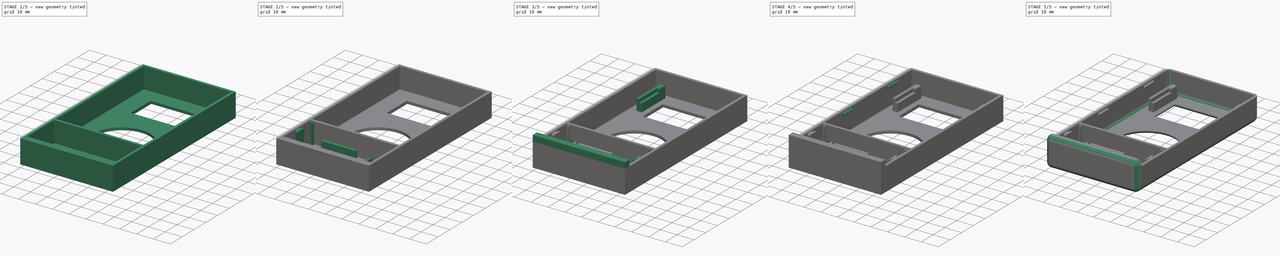
[diagram: build sequence overview — one tinted view per stage of 5, left to right]
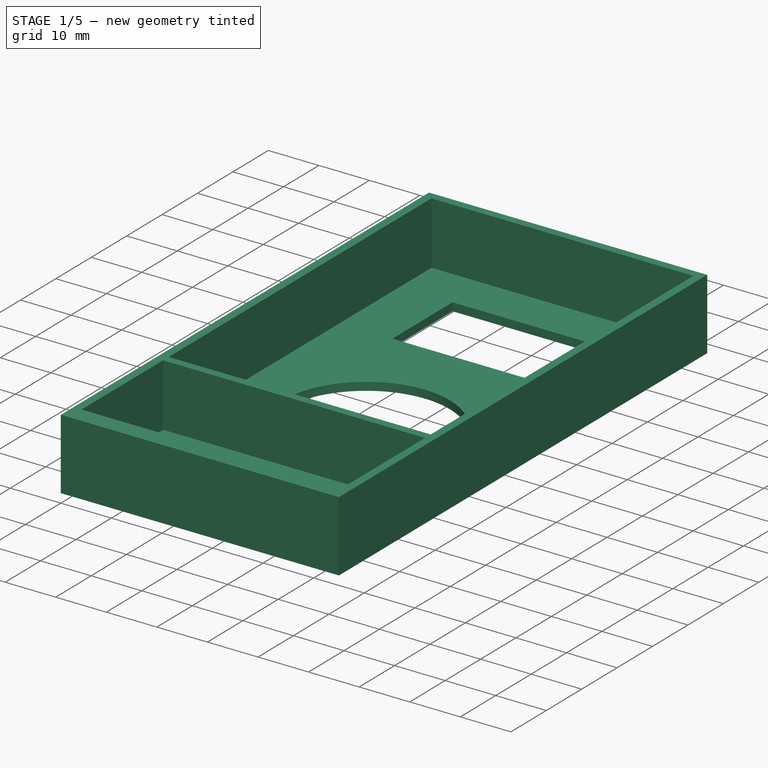
[diagram: stage 1 of 5 — iso view after this stage's code; geometry added in this stage tinted green]
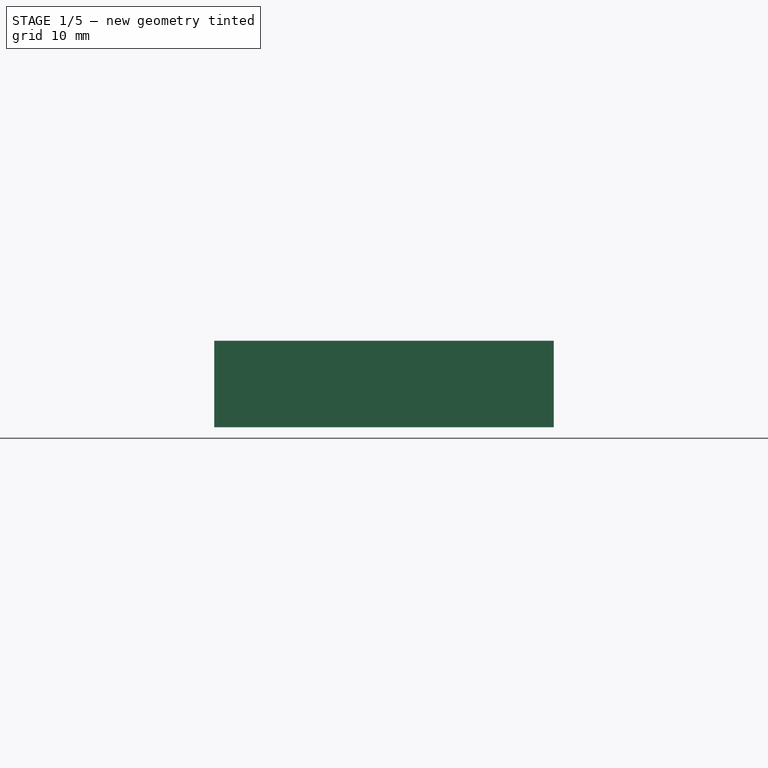
[diagram: stage 1 of 5 — front view after this stage's code; geometry added in this stage tinted green]
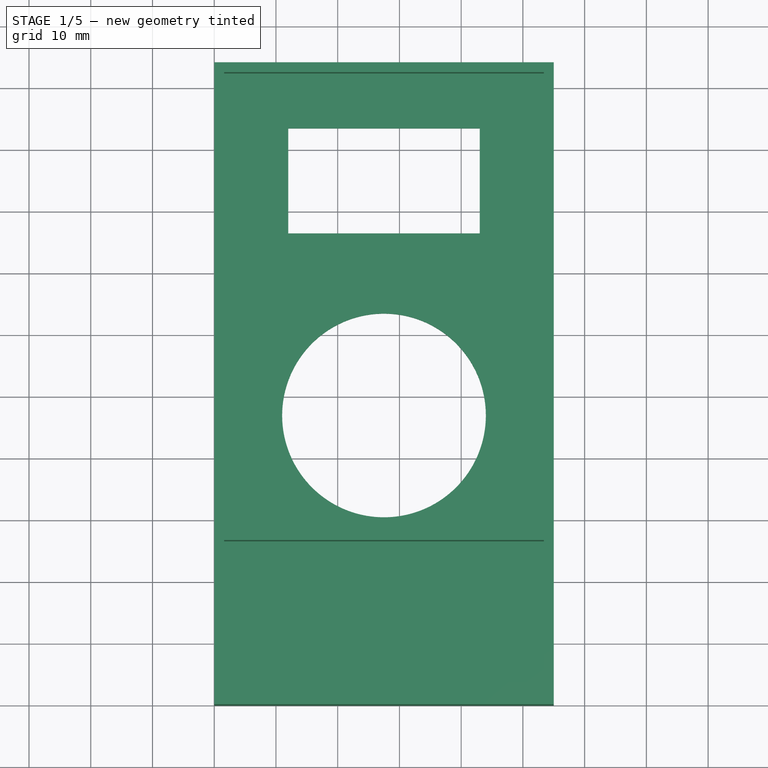
[diagram: stage 1 of 5 — top view after this stage's code; geometry added in this stage tinted green]
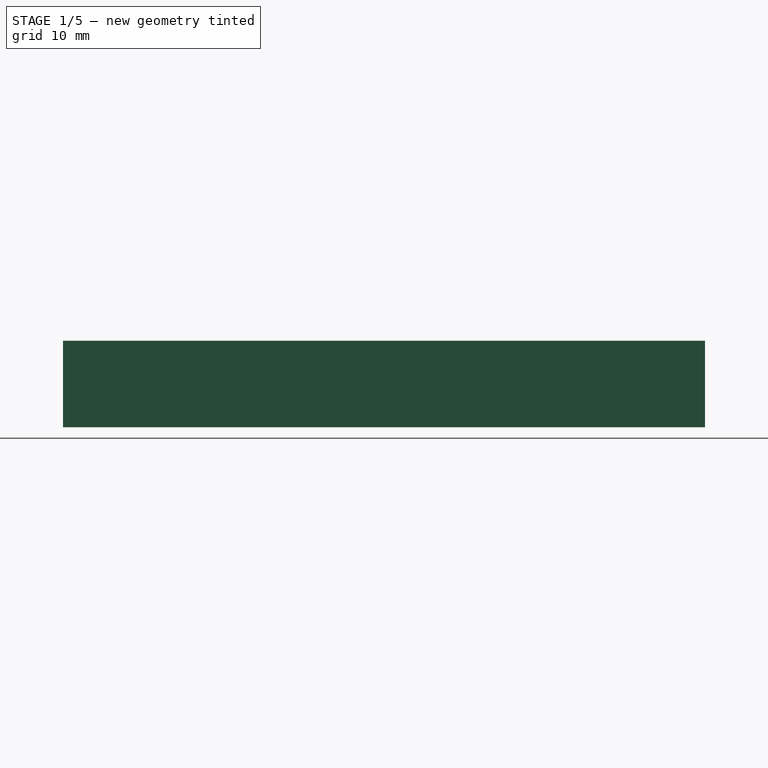
[diagram: stage 1 of 5 — right view after this stage's code; geometry added in this stage tinted green]
FCSTD DOCUMENT  (FreeCAD 0.16R)
Label: enclosure_front_fillets
License: All rights reserved
LicenseURL: http://en.wikipedia.org/wiki/All_rights_reserved
objects: Sketcher::SketchObject×16, PartDesign::Pad×11, PartDesign::Pocket×5, PartDesign::Chamfer×3, PartDesign::Fillet×2, App::DocumentObjectGroup×1
note: 53 computed .brp shape members not serialized (recipe doc carries the construction recipe); baked Part::Feature solids carry a one-line shape summary decoded from their .brp

FEATURE [Sketcher::SketchObject] Sketch
  sketch-geometry (9):
    g0: LineSegment StartX=0 StartY=0 StartZ=0 EndX=55 EndY=0 EndZ=0
    g1: LineSegment StartX=55 StartY=0 StartZ=0 EndX=55 EndY=104 EndZ=0
    g2: LineSegment StartX=55 StartY=104 StartZ=0 EndX=0 EndY=104 EndZ=0
    g3: LineSegment StartX=0 StartY=104 StartZ=0 EndX=0 EndY=0 EndZ=0
    g4: Circle CenterX=27.5 CenterY=47 CenterZ=0 NormalX=0 NormalY=0 NormalZ=1 Radius=16.5
    g5: LineSegment StartX=12 StartY=93.5 StartZ=0 EndX=43 EndY=93.5 EndZ=0
    g6: LineSegment StartX=43 StartY=93.5 StartZ=0 EndX=43 EndY=76.5 EndZ=0
    g7: LineSegment StartX=43 StartY=76.5 StartZ=0 EndX=12 EndY=76.5 EndZ=0
    g8: LineSegment StartX=12 StartY=76.5 StartZ=0 EndX=12 EndY=93.5 EndZ=0
  constraints (26):
    c: Coincident(g0,g1)
    c: Coincident(g1,g2)
    c: Coincident(g2,g3)
    c: Coincident(g3,g0)
    c: Horizontal(g0)
    c: Horizontal(g2)
    c: Vertical(g1)
    c: Vertical(g3)
    c: Coincident(g0,g-1)
    c: Distance(g3) = 104
    c: Distance(g0) = 55
    c: Coincident(g5,g6)
    c: Coincident(g6,g7)
    c: Coincident(g7,g8)
    c: Coincident(g8,g5)
    c: Horizontal(g5)
    c: Horizontal(g7)
    c: Vertical(g6)
    c: Vertical(g8)
    c: Radius(g4) = 16.5
    c: DistanceX(g4) = 27.5
    c: DistanceY(g4) = 47
    c: DistanceX(g5,g5) = 31
    c: DistanceY(g8,g8) = 17
    c: DistanceX(g5) = 12
    c: DistanceY(g4,g7) = 29.5
FEATURE [PartDesign::Pad] Pad
  Length = 14
  Length2 = 100
  Sketch = -> Sketch
  Type = 0
FEATURE [Sketcher::SketchObject] Sketch001
  ExternalGeometry = -> [Pad]
  Placement = pos=(0,0,14) rot=(0,0,1;0rad)
  Support = -> Pad [Face11]
  sketch-geometry (8):
    g0: LineSegment StartX=1.6 StartY=102.4 StartZ=0 EndX=53.4 EndY=102.4 EndZ=0
    g1: LineSegment StartX=53.4 StartY=28.2 StartZ=0 EndX=1.6 EndY=28.2 EndZ=0
    g2: LineSegment StartX=1.6 StartY=28.2 StartZ=0 EndX=1.6 EndY=102.4 EndZ=0
    g3: LineSegment StartX=1.6 StartY=26.6 StartZ=0 EndX=53.4 EndY=26.6 EndZ=0
    g4: LineSegment StartX=53.4 StartY=3.6 StartZ=0 EndX=1.6 EndY=3.6 EndZ=0
    g5: LineSegment StartX=1.6 StartY=3.6 StartZ=0 EndX=1.6 EndY=26.6 EndZ=0
    g6: LineSegment StartX=53.4 StartY=102.4 StartZ=0 EndX=53.4 EndY=28.2 EndZ=0
    g7: LineSegment StartX=53.4 StartY=26.6 StartZ=0 EndX=53.4 EndY=3.6 EndZ=0
  constraints (24):
    c: Coincident(g1,g2)
    c: Coincident(g2,g0)
    c: Horizontal(g0)
    c: Horizontal(g1)
    c: Vertical(g2)
    c: Coincident(g4,g5)
    c: Coincident(g5,g3)
    c: Horizontal(g3)
    c: Horizontal(g4)
    c: Vertical(g5)
    c: DistanceX(g4) = 1.6
    c: DistanceY(g4) = 3.6
    c: DistanceX(g4,g-5) = 1.6
    c: DistanceY(g3,g1) = 1.6
    c: DistanceX(g0) = 1.6
    c: DistanceY(g0,g-6) = 1.6
    c: DistanceX(g0,g-6) = 1.6
    c: DistanceY(g5,g5) = 23
    c: Coincident(g6,g0)
    c: Coincident(g6,g1)
    c: Vertical(g6)
    c: Coincident(g7,g3)
    c: Coincident(g7,g4)
    c: Vertical(g7)
FEATURE [PartDesign::Pocket] Pocket
  Length = 12.4
  Sketch = -> Sketch001
  Type = 0
FEATURE [Sketcher::SketchObject] Sketch003
  Placement = pos=(0,0,1.6) rot=(0,0,1;0rad)
  Support = -> Pocket [Face20]
  sketch-geometry (4):
    g0: LineSegment StartX=9 StartY=66 StartZ=0 EndX=46 EndY=66 EndZ=0
    g1: LineSegment StartX=46 StartY=66 StartZ=0 EndX=46 EndY=100 EndZ=0
    g2: LineSegment StartX=46 StartY=100 StartZ=0 EndX=9 EndY=100 EndZ=0
    g3: LineSegment StartX=9 StartY=100 StartZ=0 EndX=9 EndY=66 EndZ=0
  constraints (12):
    c: Coincident(g0,g1)
    c: Coincident(g1,g2)
    c: Coincident(g2,g3)
    c: Coincident(g3,g0)
    c: Horizontal(g0)
    c: Horizontal(g2)
    c: Vertical(g1)
    c: Vertical(g3)
    c: DistanceX(g0,g0) = 37
    c: DistanceY(g1,g1) = 34
    c: DistanceX(g0) = 9
    c: DistanceY(g0) = 66
FEATURE [PartDesign::Pocket] Pocket001
  Length = 0.0001
  Sketch = -> Sketch003
  Type = 0
FEATURE [Sketcher::SketchObject] Sketch004
  ExternalGeometry = -> [Pocket001]
  Placement = pos=(1.6,0,0) rot=(0.57735,0.57735,0.57735;2.0944rad)
  Support = -> Pocket001 [Face19]
  sketch-geometry (10):
    g0: Circle CenterX=10.5 CenterY=31.65 CenterZ=0 NormalX=0 NormalY=0 NormalZ=1 Radius=2
    g1: Circle CenterX=45 CenterY=31.65 CenterZ=0 NormalX=0 NormalY=0 NormalZ=1 Radius=2
    g2: LineSegment StartX=9 StartY=80 StartZ=0 EndX=5 EndY=80 EndZ=0
    g3: LineSegment StartX=5 StartY=80 StartZ=0 EndX=5 EndY=90 EndZ=0
    g4: LineSegment StartX=5 StartY=90 StartZ=0 EndX=9 EndY=90 EndZ=0
    g5: LineSegment StartX=9 StartY=90 StartZ=0 EndX=9 EndY=80 EndZ=0
    g6: LineSegment StartX=46 StartY=90 StartZ=0 EndX=50 EndY=90 EndZ=0
    g7: LineSegment StartX=50 StartY=90 StartZ=0 EndX=50 EndY=80 EndZ=0
    g8: LineSegment StartX=50 StartY=80 StartZ=0 EndX=46 EndY=80 EndZ=0
    g9: LineSegment StartX=46 StartY=80 StartZ=0 EndX=46 EndY=90 EndZ=0
  constraints (22):
    c: Coincident(g2,g3)
    c: Coincident(g3,g4)
    c: Coincident(g4,g5)
    c: Coincident(g5,g2)
    c: Horizontal(g2)
    c: Horizontal(g4)
    c: Vertical(g3)
    c: Vertical(g5)
    c: Coincident(g6,g7)
    c: Coincident(g7,g8)
    c: Coincident(g8,g9)
    c: Coincident(g9,g6)
    c: Horizontal(g6)
    c: Horizontal(g8)
    c: Vertical(g7)
    c: Vertical(g9)
    c: Radius(g0) = 2
    c: Equal(g0,g1)
    c: Distance(g2) = 4
    c: Distance(g8) = 4
    c: Distance(g3) = 10
    c: Distance(g7) = 10
FEATURE [PartDesign::Pad] Pad001
  Length = 4
  Length2 = 100
  Sketch = -> Sketch004
  Type = 0
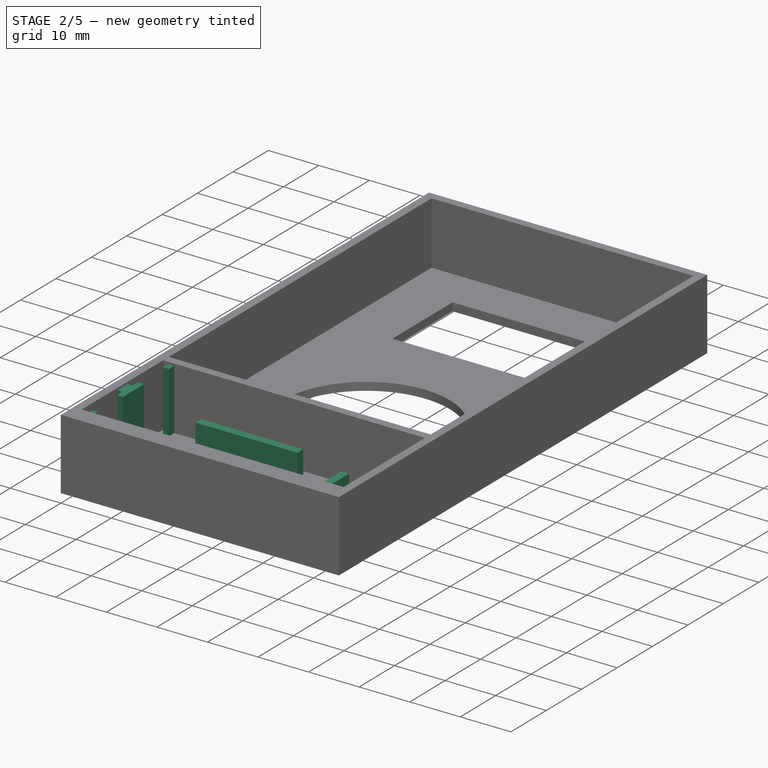
[diagram: stage 2 of 5 — iso view after this stage's code; geometry added in this stage tinted green]
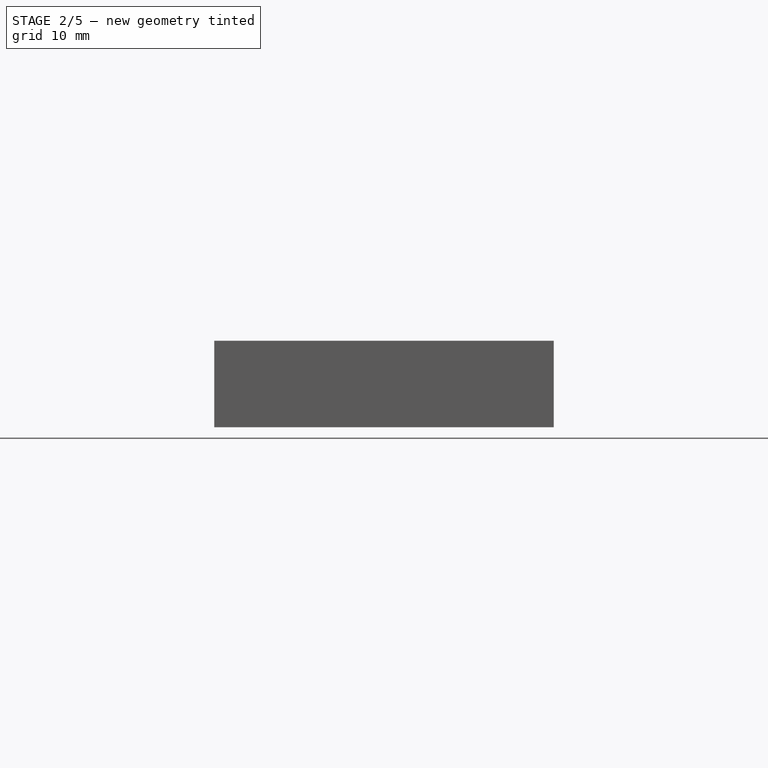
[diagram: stage 2 of 5 — front view after this stage's code; geometry added in this stage tinted green]
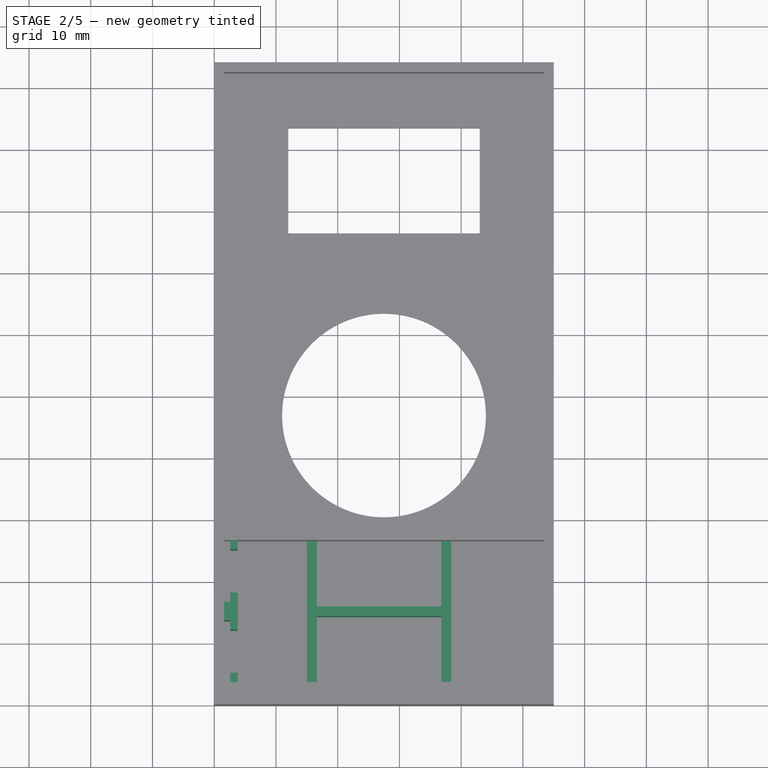
[diagram: stage 2 of 5 — top view after this stage's code; geometry added in this stage tinted green]
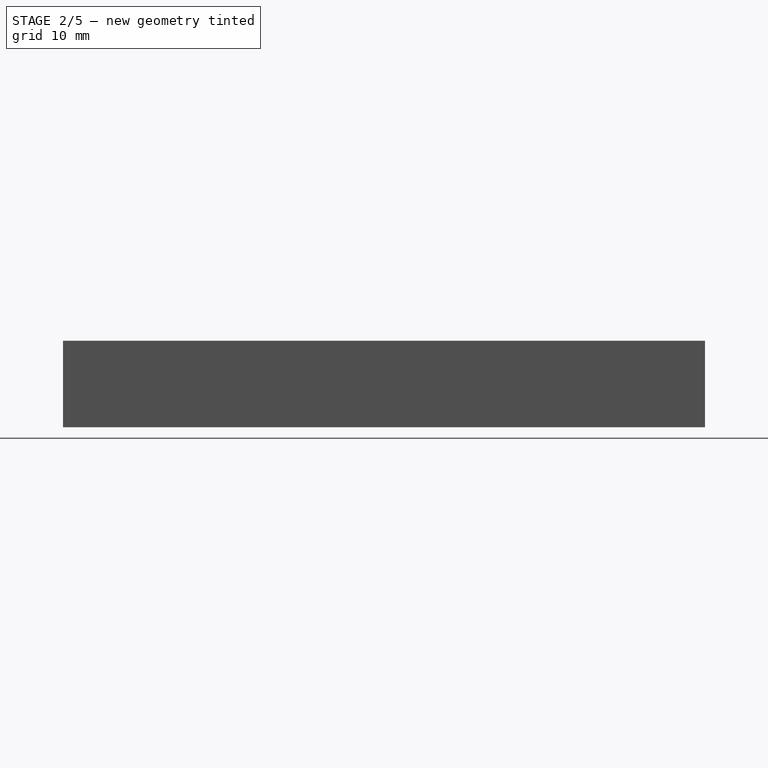
[diagram: stage 2 of 5 — right view after this stage's code; geometry added in this stage tinted green]
FEATURE [Sketcher::SketchObject] Sketch005
  Placement = pos=(0,0,5.6) rot=(0,0,1;0rad)
  Support = -> Pad001 [Face35]
  sketch-geometry (10):
    g0: LineSegment StartX=5 StartY=90 StartZ=0 EndX=7.45 EndY=90 EndZ=0
    g1: LineSegment StartX=7.45 StartY=90 StartZ=0 EndX=7.45 EndY=80 EndZ=0
    g2: LineSegment StartX=7.45 StartY=80 StartZ=0 EndX=5 EndY=80 EndZ=0
    g3: LineSegment StartX=5 StartY=80 StartZ=0 EndX=5 EndY=90 EndZ=0
    g4: LineSegment StartX=50 StartY=90 StartZ=0 EndX=47.85 EndY=90 EndZ=0
    g5: LineSegment StartX=47.85 StartY=90 StartZ=0 EndX=47.85 EndY=80 EndZ=0
    g6: LineSegment StartX=47.85 StartY=80 StartZ=0 EndX=50 EndY=80 EndZ=0
    g7: LineSegment StartX=50 StartY=80 StartZ=0 EndX=50 EndY=90 EndZ=0
    g8: Circle CenterX=10.5 CenterY=31.65 CenterZ=0 NormalX=0 NormalY=0 NormalZ=1 Radius=0.8
    g9: Circle CenterX=45 CenterY=31.65 CenterZ=0 NormalX=0 NormalY=0 NormalZ=1 Radius=0.8
FEATURE [PartDesign::Pad] Pad002
  Length = 2
  Length2 = 100
  Sketch = -> Sketch005
  Type = 0
FEATURE [Sketcher::SketchObject] Sketch006
  ExternalGeometry = -> [Pad002]
  Placement = pos=(0,0,1.6) rot=(0,0,1;0rad)
  Support = -> Pad002 [Face22]
  sketch-geometry (8):
    g0: LineSegment StartX=16.6 StartY=26.6 StartZ=0 EndX=15 EndY=26.6 EndZ=0
    g1: LineSegment StartX=15 StartY=26.6 StartZ=0 EndX=15 EndY=3.6 EndZ=0
    g2: LineSegment StartX=15 StartY=3.6 StartZ=0 EndX=16.6 EndY=3.6 EndZ=0
    g3: LineSegment StartX=16.6 StartY=3.6 StartZ=0 EndX=16.6 EndY=26.6 EndZ=0
    g4: LineSegment StartX=36.8 StartY=26.6 StartZ=0 EndX=38.4 EndY=26.6 EndZ=0
    g5: LineSegment StartX=38.4 StartY=26.6 StartZ=0 EndX=38.4 EndY=3.6 EndZ=0
    g6: LineSegment StartX=38.4 StartY=3.6 StartZ=0 EndX=36.8 EndY=3.6 EndZ=0
    g7: LineSegment StartX=36.8 StartY=3.6 StartZ=0 EndX=36.8 EndY=26.6 EndZ=0
  constraints (24):
    c: Coincident(g0,g1)
    c: Coincident(g1,g2)
    c: Coincident(g2,g3)
    c: Coincident(g3,g0)
    c: Horizontal(g0)
    c: Horizontal(g2)
    c: Vertical(g1)
    c: Vertical(g3)
    c: PointOnObject(g0,g-3)
    c: PointOnObject(g1,g-4)
    c: Coincident(g4,g5)
    c: Coincident(g5,g6)
    c: Coincident(g6,g7)
    c: Coincident(g7,g4)
    c: Horizontal(g4)
    c: Horizontal(g6)
    c: Vertical(g5)
    c: Vertical(g7)
    c: PointOnObject(g4,g-3)
    c: PointOnObject(g5,g-4)
    c: Distance(g2,g1) = 1.6
    c: Distance(g6,g5) = 1.6
    c: DistanceX(g-4,g2) = 15
    c: DistanceX(g5,g-4) = 15
FEATURE [PartDesign::Pad] Pad003
  Length = 2
  Length2 = 100
  Sketch = -> Sketch006
  Type = 0
FEATURE [Sketcher::SketchObject] Sketch007
  ExternalGeometry = -> [Pad003]
  Placement = pos=(0,0,1.6) rot=(0,0,1;0rad)
  Support = -> Pad003 [Face26]
  sketch-geometry (4):
    g0: LineSegment StartX=16.6 StartY=15.9 StartZ=0 EndX=36.8 EndY=15.9 EndZ=0
    g1: LineSegment StartX=36.8 StartY=15.9 StartZ=0 EndX=36.8 EndY=14.3 EndZ=0
    g2: LineSegment StartX=36.8 StartY=14.3 StartZ=0 EndX=16.6 EndY=14.3 EndZ=0
    g3: LineSegment StartX=16.6 StartY=14.3 StartZ=0 EndX=16.6 EndY=15.9 EndZ=0
  constraints (12):
    c: Coincident(g0,g1)
    c: Coincident(g1,g2)
    c: Coincident(g2,g3)
    c: Coincident(g3,g0)
    c: Horizontal(g0)
    c: Horizontal(g2)
    c: Vertical(g1)
    c: Vertical(g3)
    c: PointOnObject(g0,g-3)
    c: PointOnObject(g1,g-4)
    c: Distance(g0,g2) = 1.6
    c: DistanceY(g0,g-3) = 10.7
FEATURE [PartDesign::Pad] Pad004
  Length = 10
  Length2 = 100
  Sketch = -> Sketch007
  Type = 0
FEATURE [Sketcher::SketchObject] Sketch008
  ExternalGeometry = -> [Pad004]
  Placement = pos=(0,0,1.6) rot=(0,0,1;0rad)
  Support = -> Pad004 [Face30]
  sketch-geometry (16):
    g0: LineSegment StartX=2.6 StartY=26.6 StartZ=0 EndX=3.8 EndY=26.6 EndZ=0
    g1: LineSegment StartX=3.8 StartY=26.6 StartZ=0 EndX=3.8 EndY=25.1 EndZ=0
    g2: LineSegment StartX=3.8 StartY=25.1 StartZ=0 EndX=2.6 EndY=25.1 EndZ=0
    g3: LineSegment StartX=2.6 StartY=25.1 StartZ=0 EndX=2.6 EndY=26.6 EndZ=0
    g4: LineSegment StartX=2.6 StartY=3.6 StartZ=0 EndX=3.8 EndY=3.6 EndZ=0
    g5: LineSegment StartX=3.8 StartY=3.6 StartZ=0 EndX=3.8 EndY=5.1 EndZ=0
    g6: LineSegment StartX=3.8 StartY=5.1 StartZ=0 EndX=2.6 EndY=5.1 EndZ=0
    g7: LineSegment StartX=2.6 StartY=5.1 StartZ=0 EndX=2.6 EndY=3.6 EndZ=0
    g8: LineSegment StartX=1.6 StartY=16.6 StartZ=0 EndX=1.6 EndY=13.6 EndZ=0
    g9: LineSegment StartX=1.6 StartY=13.6 StartZ=0 EndX=2.6 EndY=13.6 EndZ=0
    g10: LineSegment StartX=2.6 StartY=13.6 StartZ=0 EndX=2.6 EndY=12.1 EndZ=0
    g11: LineSegment StartX=2.6 StartY=12.1 StartZ=0 EndX=3.8 EndY=12.1 EndZ=0
    g12: LineSegment StartX=3.8 StartY=12.1 StartZ=0 EndX=3.8 EndY=18.1 EndZ=0
    g13: LineSegment StartX=3.8 StartY=18.1 StartZ=0 EndX=2.6 EndY=18.1 EndZ=0
    g14: LineSegment StartX=2.6 StartY=18.1 StartZ=0 EndX=2.6 EndY=16.6 EndZ=0
    g15: LineSegment StartX=2.6 StartY=16.6 StartZ=0 EndX=1.6 EndY=16.6 EndZ=0
  constraints (48):
    c: Coincident(g0,g1)
    c: Coincident(g1,g2)
    c: Coincident(g2,g3)
    c: Coincident(g3,g0)
    c: Horizontal(g0)
    c: Horizontal(g2)
    c: Vertical(g1)
    c: Vertical(g3)
    c: PointOnObject(g0,g-3)
    c: Coincident(g4,g5)
    c: Coincident(g5,g6)
    c: Coincident(g6,g7)
    c: Coincident(g7,g4)
    c: Horizontal(g4)
    c: Horizontal(g6)
    c: Vertical(g5)
    c: Vertical(g7)
    c: PointOnObject(g4,g-5)
    c: Vertical(g8)
    c: Coincident(g8,g9)
    c: Horizontal(g9)
    c: Coincident(g9,g10)
    c: Vertical(g10)
    c: Coincident(g10,g11)
    c: Horizontal(g11)
    c: Coincident(g11,g12)
    c: Vertical(g12)
    c: Coincident(g12,g13)
    c: Horizontal(g13)
    c: Coincident(g13,g14)
    c: Vertical(g14)
    c: Coincident(g14,g15)
    c: Coincident(g15,g8)
    c: Parallel(g15,g9)
    c: Equal(g15,g9)
    c: Equal(g14,g10)
    c: Equal(g10,g7)
    c: Equal(g7,g3)
    c: Equal(g13,g2)
    c: Equal(g2,g6)
    c: PointOnObject(g8,g-4)
    c: Distance(g1) = 1.5
    c: Distance(g2) = 1.2
    c: Distance(g15) = 1
    c: DistanceX(g-4,g0) = 1
    c: DistanceX(g-5,g4) = 1
    c: DistanceY(g-5,g8) = 10
    c: DistanceY(g8,g-4) = 10
FEATURE [PartDesign::Pad] Pad005
  Length = 12
  Length2 = 100
  Sketch = -> Sketch008
  Type = 0
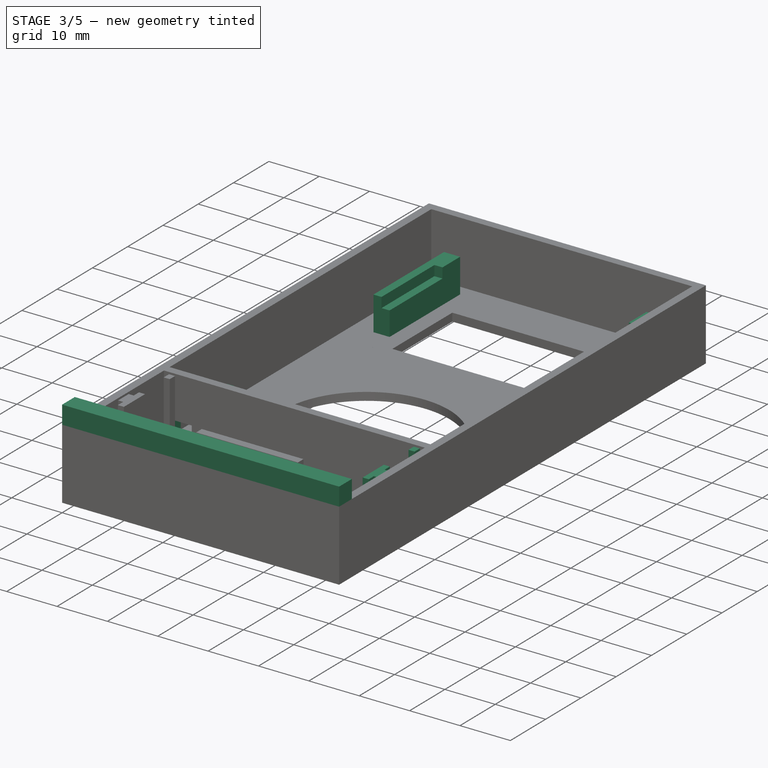
[diagram: stage 3 of 5 — iso view after this stage's code; geometry added in this stage tinted green]
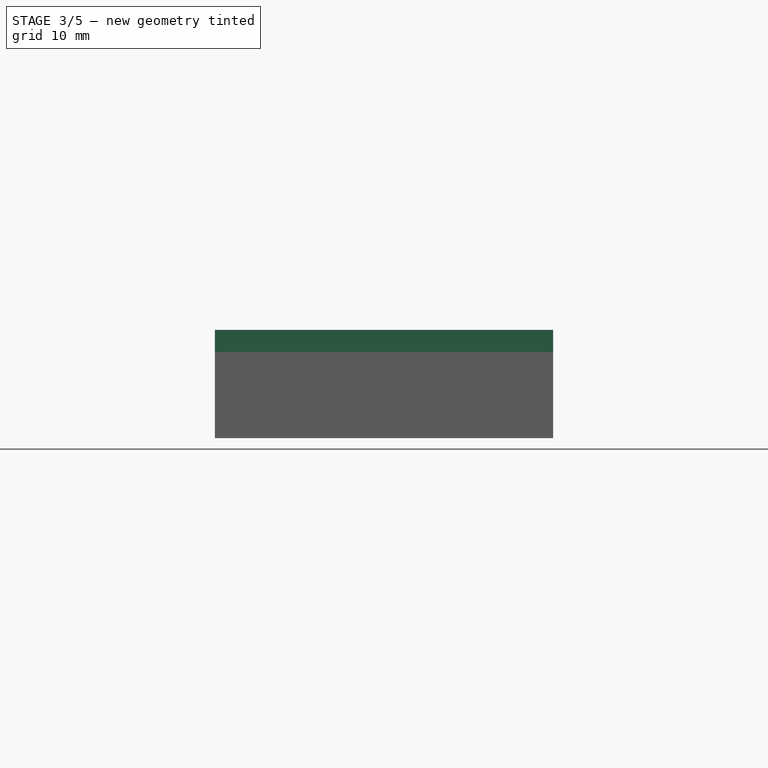
[diagram: stage 3 of 5 — front view after this stage's code; geometry added in this stage tinted green]
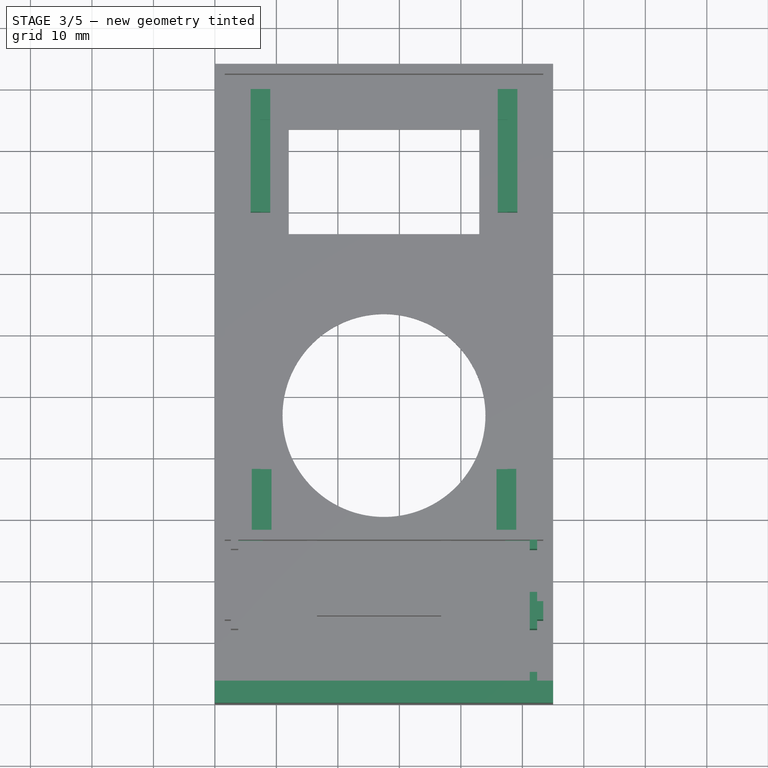
[diagram: stage 3 of 5 — top view after this stage's code; geometry added in this stage tinted green]
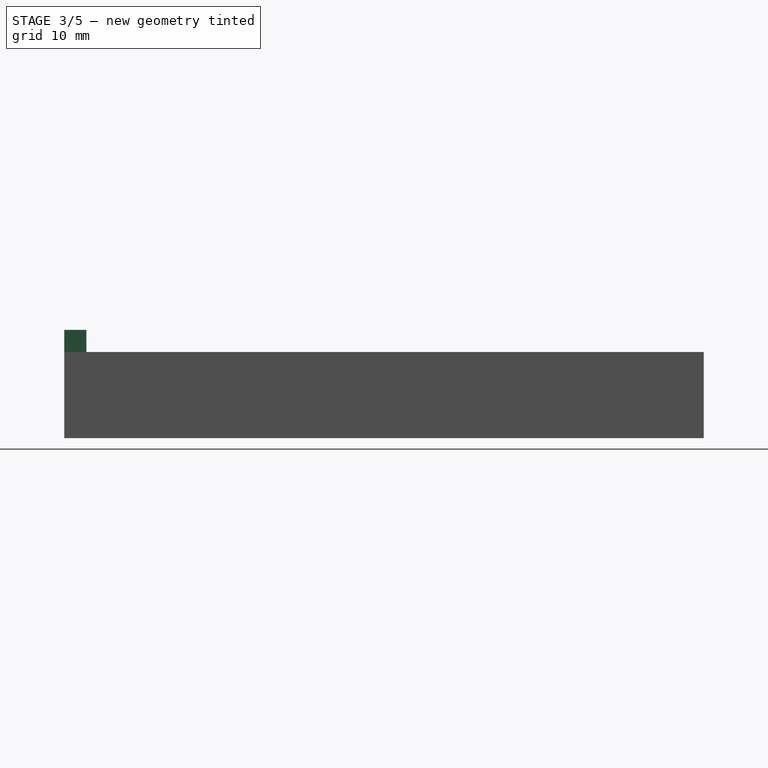
[diagram: stage 3 of 5 — right view after this stage's code; geometry added in this stage tinted green]
FEATURE [Sketcher::SketchObject] Sketch009
  ExternalGeometry = -> [Pad005]
  Placement = pos=(0,0,1.6) rot=(0,0,1;0rad)
  Support = -> Pad005 [Face22]
  sketch-geometry (16):
    g0: LineSegment StartX=51.2 StartY=26.6 StartZ=0 EndX=52.4 EndY=26.6 EndZ=0
    g1: LineSegment StartX=52.4 StartY=26.6 StartZ=0 EndX=52.4 EndY=25.1 EndZ=0
    g2: LineSegment StartX=52.4 StartY=25.1 StartZ=0 EndX=51.2 EndY=25.1 EndZ=0
    g3: LineSegment StartX=51.2 StartY=25.1 StartZ=0 EndX=51.2 EndY=26.6 EndZ=0
    g4: LineSegment StartX=51.2 StartY=3.6 StartZ=0 EndX=52.4 EndY=3.6 EndZ=0
    g5: LineSegment StartX=52.4 StartY=3.6 StartZ=0 EndX=52.4 EndY=5.1 EndZ=0
    g6: LineSegment StartX=52.4 StartY=5.1 StartZ=0 EndX=51.2 EndY=5.1 EndZ=0
    g7: LineSegment StartX=51.2 StartY=5.1 StartZ=0 EndX=51.2 EndY=3.6 EndZ=0
    g8: LineSegment StartX=53.4 StartY=16.6 StartZ=0 EndX=52.4 EndY=16.6 EndZ=0
    g9: LineSegment StartX=52.4 StartY=16.6 StartZ=0 EndX=52.4 EndY=18.1 EndZ=0
    g10: LineSegment StartX=52.4 StartY=18.1 StartZ=0 EndX=51.2 EndY=18.1 EndZ=0
    g11: LineSegment StartX=51.2 StartY=18.1 StartZ=0 EndX=51.2 EndY=12.1 EndZ=0
    g12: LineSegment StartX=51.2 StartY=12.1 StartZ=0 EndX=52.4 EndY=12.1 EndZ=0
    g13: LineSegment StartX=52.4 StartY=12.1 StartZ=0 EndX=52.4 EndY=13.6 EndZ=0
    g14: LineSegment StartX=52.4 StartY=13.6 StartZ=0 EndX=53.4 EndY=13.6 EndZ=0
    g15: LineSegment StartX=53.4 StartY=13.6 StartZ=0 EndX=53.4 EndY=16.6 EndZ=0
  constraints (48):
    c: Coincident(g0,g1)
    c: Coincident(g1,g2)
    c: Coincident(g2,g3)
    c: Coincident(g3,g0)
    c: Horizontal(g0)
    c: Horizontal(g2)
    c: Vertical(g1)
    c: Vertical(g3)
    c: PointOnObject(g0,g-3)
    c: Coincident(g4,g5)
    c: Coincident(g5,g6)
    c: Coincident(g6,g7)
    c: Coincident(g7,g4)
    c: Horizontal(g4)
    c: Horizontal(g6)
    c: Vertical(g5)
    c: Vertical(g7)
    c: PointOnObject(g4,g-5)
    c: PointOnObject(g8,g-4)
    c: Horizontal(g8)
    c: Coincident(g8,g9)
    c: Vertical(g9)
    c: Coincident(g9,g10)
    c: Horizontal(g10)
    c: Coincident(g10,g11)
    c: Vertical(g11)
    c: Coincident(g11,g12)
    c: Horizontal(g12)
    c: Coincident(g12,g13)
    c: Vertical(g13)
    c: Coincident(g13,g14)
    c: PointOnObject(g14,g-4)
    c: Horizontal(g14)
    c: Coincident(g14,g15)
    c: Coincident(g15,g8)
    c: Equal(g5,g13)
    c: Equal(g13,g9)
    c: Equal(g9,g1)
    c: Equal(g10,g2)
    c: Equal(g2,g6)
    c: Equal(g6,g12)
    c: Distance(g6) = 1.2
    c: Distance(g5) = 1.5
    c: DistanceX(g4,g-5) = 1
    c: DistanceX(g0,g-4) = 1
    c: Distance(g8) = 1
    c: DistanceY(g8,g-4) = 10
    c: DistanceY(g-5,g14) = 10
FEATURE [PartDesign::Pad] Pad006
  Length = 12
  Length2 = 100
  Sketch = -> Sketch009
  Type = 0
FEATURE [Sketcher::SketchObject] Sketch010
  ExternalGeometry = -> [Pad006]
  Placement = pos=(0,26.6,0) rot=(1,0,0;1.5708rad)
  Support = -> Pad006 [Face12]
  sketch-geometry (8):
    g0: LineSegment StartX=3.8 StartY=1.6 StartZ=0 EndX=7.8 EndY=1.6 EndZ=0
    g1: LineSegment StartX=7.8 StartY=1.6 StartZ=0 EndX=7.8 EndY=5.6 EndZ=0
    g2: LineSegment StartX=7.8 StartY=5.6 StartZ=0 EndX=3.8 EndY=5.6 EndZ=0
    g3: LineSegment StartX=3.8 StartY=5.6 StartZ=0 EndX=3.8 EndY=1.6 EndZ=0
    g4: LineSegment StartX=51.2 StartY=1.6 StartZ=0 EndX=47.2 EndY=1.6 EndZ=0
    g5: LineSegment StartX=47.2 StartY=1.6 StartZ=0 EndX=47.2 EndY=5.6 EndZ=0
    g6: LineSegment StartX=47.2 StartY=5.6 StartZ=0 EndX=51.2 EndY=5.6 EndZ=0
    g7: LineSegment StartX=51.2 StartY=5.6 StartZ=0 EndX=51.2 EndY=1.6 EndZ=0
  constraints (24):
    c: Coincident(g0,g1)
    c: Coincident(g1,g2)
    c: Coincident(g2,g3)
    c: Coincident(g3,g0)
    c: Horizontal(g0)
    c: Horizontal(g2)
    c: Vertical(g1)
    c: Vertical(g3)
    c: PointOnObject(g0,g-3)
    c: Coincident(g4,g5)
    c: Coincident(g5,g6)
    c: Coincident(g6,g7)
    c: Coincident(g7,g4)
    c: Horizontal(g4)
    c: Horizontal(g6)
    c: Vertical(g5)
    c: Vertical(g7)
    c: PointOnObject(g4,g-6)
    c: Coincident(g4,g-6)
    c: Equal(g6,g5)
    c: Coincident(g0,g-3)
    c: Equal(g2,g1)
    c: Equal(g1,g5)
    c: Distance(g2) = 4
FEATURE [PartDesign::Pocket] Pocket002
  Length = 5
  Sketch = -> Sketch010
  Type = 2
FEATURE [Sketcher::SketchObject] Sketch011
  ExternalGeometry = -> [Pocket002]
  Placement = pos=(0,0,14) rot=(0,0,1;0rad)
  Support = -> Pocket002 [Face5]
  sketch-geometry (4):
    g0: LineSegment StartX=0 StartY=0 StartZ=0 EndX=55 EndY=0 EndZ=0
    g1: LineSegment StartX=55 StartY=0 StartZ=0 EndX=55 EndY=3.6 EndZ=0
    g2: LineSegment StartX=55 StartY=3.6 StartZ=0 EndX=0 EndY=3.6 EndZ=0
    g3: LineSegment StartX=0 StartY=3.6 StartZ=0 EndX=0 EndY=0 EndZ=0
  constraints (11):
    c: Coincident(g0,g1)
    c: Coincident(g1,g2)
    c: Coincident(g2,g3)
    c: Coincident(g3,g0)
    c: Horizontal(g0)
    c: Horizontal(g2)
    c: Vertical(g1)
    c: Vertical(g3)
    c: Coincident(g0,g-1)
    c: PointOnObject(g1,g-3)
    c: DistanceY(g3,g3) = 3.6
FEATURE [PartDesign::Pad] Pad007
  Length = 3.6
  Length2 = 100
  Sketch = -> Sketch011
  Type = 0
FEATURE [Sketcher::SketchObject] Sketch012
  ExternalGeometry = -> [Pad007]
  Placement = pos=(0,0,1.6) rot=(0,0,1;0rad)
  Support = -> Pad007 [Face59]
  sketch-geometry (16):
    g0: LineSegment StartX=9 StartY=100 StartZ=0 EndX=5.8 EndY=100 EndZ=0
    g1: LineSegment StartX=5.8 StartY=100 StartZ=0 EndX=5.8 EndY=80 EndZ=0
    g2: LineSegment StartX=5.8 StartY=80 StartZ=0 EndX=9 EndY=80 EndZ=0
    g3: LineSegment StartX=9 StartY=80 StartZ=0 EndX=9 EndY=100 EndZ=0
    g4: LineSegment StartX=46 StartY=100 StartZ=0 EndX=49.2 EndY=100 EndZ=0
    g5: LineSegment StartX=49.2 StartY=100 StartZ=0 EndX=49.2 EndY=80 EndZ=0
    g6: LineSegment StartX=49.2 StartY=80 StartZ=0 EndX=46 EndY=80 EndZ=0
    g7: LineSegment StartX=46 StartY=80 StartZ=0 EndX=46 EndY=100 EndZ=0
    g8: LineSegment StartX=9.2 StartY=28.2 StartZ=0 EndX=6 EndY=28.2 EndZ=0
    g9: LineSegment StartX=6 StartY=28.2 StartZ=0 EndX=6 EndY=38.2 EndZ=0
    g10: LineSegment StartX=6 StartY=38.2 StartZ=0 EndX=9.2 EndY=38.2 EndZ=0
    g11: LineSegment StartX=9.2 StartY=38.2 StartZ=0 EndX=9.2 EndY=28.2 EndZ=0
    g12: LineSegment StartX=45.8 StartY=28.2 StartZ=0 EndX=49 EndY=28.2 EndZ=0
    g13: LineSegment StartX=49 StartY=28.2 StartZ=0 EndX=49 EndY=38.2 EndZ=0
    g14: LineSegment StartX=49 StartY=38.2 StartZ=0 EndX=45.8 EndY=38.2 EndZ=0
    g15: LineSegment StartX=45.8 StartY=38.2 StartZ=0 EndX=45.8 EndY=28.2 EndZ=0
  constraints (48):
    c: Coincident(g0,g1)
    c: Coincident(g1,g2)
    c: Coincident(g2,g3)
    c: Coincident(g3,g0)
    c: Horizontal(g0)
    c: Horizontal(g2)
    c: Vertical(g1)
    c: Vertical(g3)
    c: PointOnObject(g0,g-4)
    c: Coincident(g4,g5)
    c: Coincident(g5,g6)
    c: Coincident(g6,g7)
    c: Coincident(g7,g4)
    c: Horizontal(g4)
    c: Horizontal(g6)
    c: Vertical(g5)
    c: Vertical(g7)
    c: PointOnObject(g4,g-5)
    c: Equal(g2,g6)
    c: Equal(g1,g5)
    c: Distance(g1) = 20
    c: Distance(g2) = 3.2
    c: Coincident(g4,g-5)
    c: Coincident(g0,g-4)
    c: Coincident(g8,g9)
    c: Coincident(g9,g10)
    c: Coincident(g10,g11)
    c: Coincident(g11,g8)
    c: Horizontal(g8)
    c: Horizontal(g10)
    c: Vertical(g9)
    c: Vertical(g11)
    c: PointOnObject(g8,g-6)
    c: Coincident(g12,g13)
    c: Coincident(g13,g14)
    c: Coincident(g14,g15)
    c: Coincident(g15,g12)
    c: Horizontal(g12)
    c: Horizontal(g14)
    c: Vertical(g13)
    c: Vertical(g15)
    c: PointOnObject(g12,g-6)
    c: Equal(g10,g14)
    c: Equal(g9,g13)
    c: Distance(g9) = 10
    c: Distance(g10) = 3.2
    c: DistanceX(g8,g12) = 36.6
    c: DistanceX(g8) = 6
FEATURE [PartDesign::Pad] Pad008
  Length = 6.75
  Length2 = 100
  Sketch = -> Sketch012
  Type = 0
FEATURE [Sketcher::SketchObject] Sketch013
  ExternalGeometry = -> [Pad008]
  Placement = pos=(0,0,8.35) rot=(0,0,1;0rad)
  Support = -> Pad008 [Face62]
  sketch-geometry (16):
    g0: LineSegment StartX=9.2 StartY=28.2 StartZ=0 EndX=7.4 EndY=28.2 EndZ=0
    g1: LineSegment StartX=7.4 StartY=28.2 StartZ=0 EndX=7.4 EndY=38.2 EndZ=0
    g2: LineSegment StartX=7.4 StartY=38.2 StartZ=0 EndX=9.2 EndY=38.2 EndZ=0
    g3: LineSegment StartX=9.2 StartY=38.2 StartZ=0 EndX=9.2 EndY=28.2 EndZ=0
    g4: LineSegment StartX=45.8 StartY=28.2 StartZ=0 EndX=47.6 EndY=28.2 EndZ=0
    g5: LineSegment StartX=47.6 StartY=28.2 StartZ=0 EndX=47.6 EndY=38.2 EndZ=0
    g6: LineSegment StartX=47.6 StartY=38.2 StartZ=0 EndX=45.8 EndY=38.2 EndZ=0
    g7: LineSegment StartX=45.8 StartY=38.2 StartZ=0 EndX=45.8 EndY=28.2 EndZ=0
    g8: LineSegment StartX=9 StartY=80 StartZ=0 EndX=7.4 EndY=80 EndZ=0
    g9: LineSegment StartX=7.4 StartY=80 StartZ=0 EndX=7.4 EndY=95 EndZ=0
    g10: LineSegment StartX=7.4 StartY=95 StartZ=0 EndX=9 EndY=95 EndZ=0
    g11: LineSegment StartX=9 StartY=95 StartZ=0 EndX=9 EndY=80 EndZ=0
    g12: LineSegment StartX=46 StartY=80 StartZ=0 EndX=47.6 EndY=80 EndZ=0
    g13: LineSegment StartX=47.6 StartY=80 StartZ=0 EndX=47.6 EndY=95 EndZ=0
    g14: LineSegment StartX=47.6 StartY=95 StartZ=0 EndX=46 EndY=95 EndZ=0
    g15: LineSegment StartX=46 StartY=95 StartZ=0 EndX=46 EndY=80 EndZ=0
  constraints (44):
    c: Coincident(g0,g1)
    c: Coincident(g1,g2)
    c: Coincident(g2,g3)
    c: Coincident(g3,g0)
    c: Horizontal(g0)
    c: Horizontal(g2)
    c: Vertical(g1)
    c: Vertical(g3)
    c: Coincident(g0,g-16)
    c: PointOnObject(g1,g-4)
    c: Coincident(g4,g5)
    c: Coincident(g5,g6)
    c: Coincident(g6,g7)
    c: Coincident(g7,g4)
    c: Horizontal(g4)
    c: Horizontal(g6)
    c: Vertical(g5)
    c: Vertical(g7)
    c: Coincident(g4,g-17)
    c: PointOnObject(g5,g-7)
    c: Coincident(g8,g9)
    c: Coincident(g9,g10)
    c: Coincident(g10,g11)
    c: Coincident(g11,g8)
    c: Horizontal(g8)
    c: Horizontal(g10)
    c: Vertical(g9)
    c: Vertical(g11)
    c: Coincident(g8,g-15)
    c: Coincident(g12,g13)
    c: Coincident(g13,g14)
    c: Coincident(g14,g15)
    c: Coincident(g15,g12)
    c: Horizontal(g12)
    c: Horizontal(g14)
    c: Vertical(g13)
    c: Vertical(g15)
    c: Coincident(g12,g-14)
    c: Equal(g10,g14)
    c: Distance(g10) = 1.6
    c: Equal(g13,g9)
    c: Distance(g9) = 15
    c: Distance(g0,g0) = 1.8
    c: Distance(g4,g4) = 1.8
FEATURE [PartDesign::Pocket] Pocket003
  Length = 2
  Sketch = -> Sketch013
  Type = 0
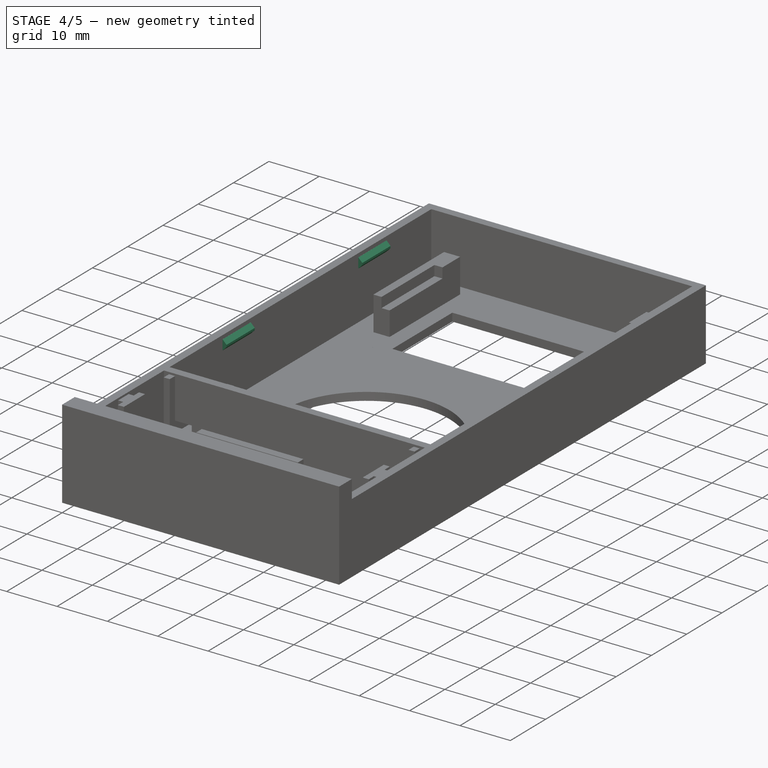
[diagram: stage 4 of 5 — iso view after this stage's code; geometry added in this stage tinted green]
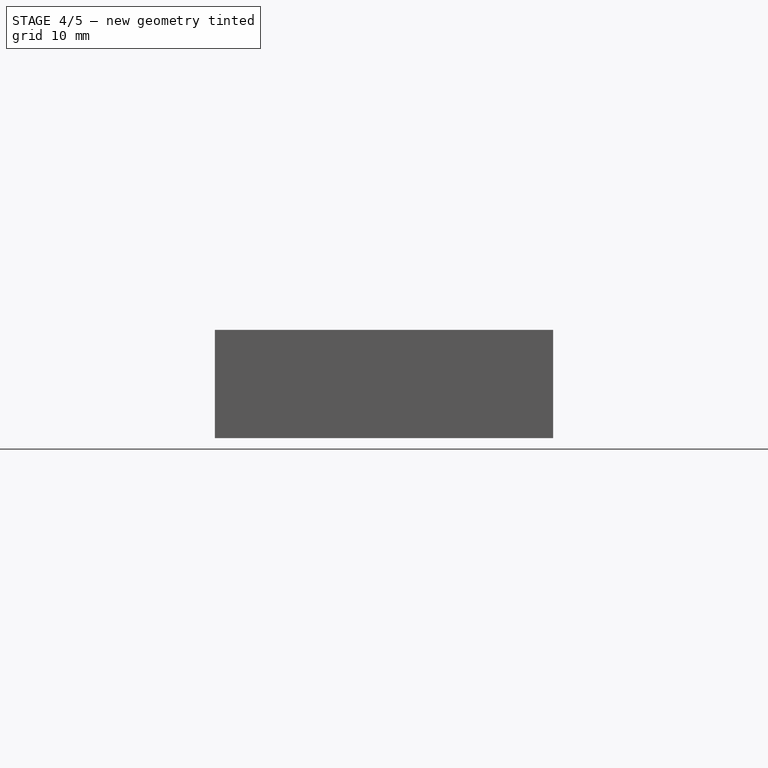
[diagram: stage 4 of 5 — front view after this stage's code; geometry added in this stage tinted green]
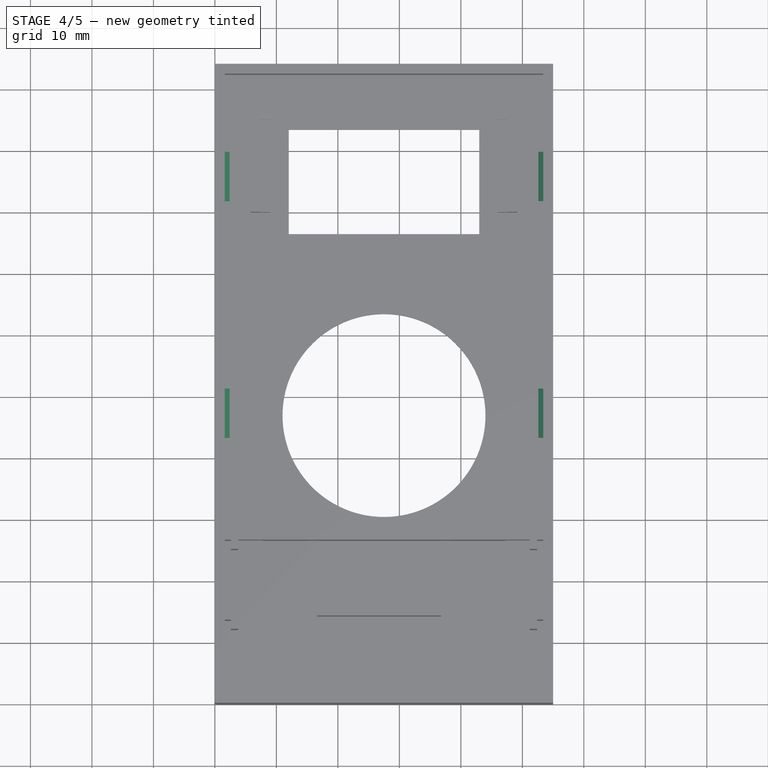
[diagram: stage 4 of 5 — top view after this stage's code; geometry added in this stage tinted green]
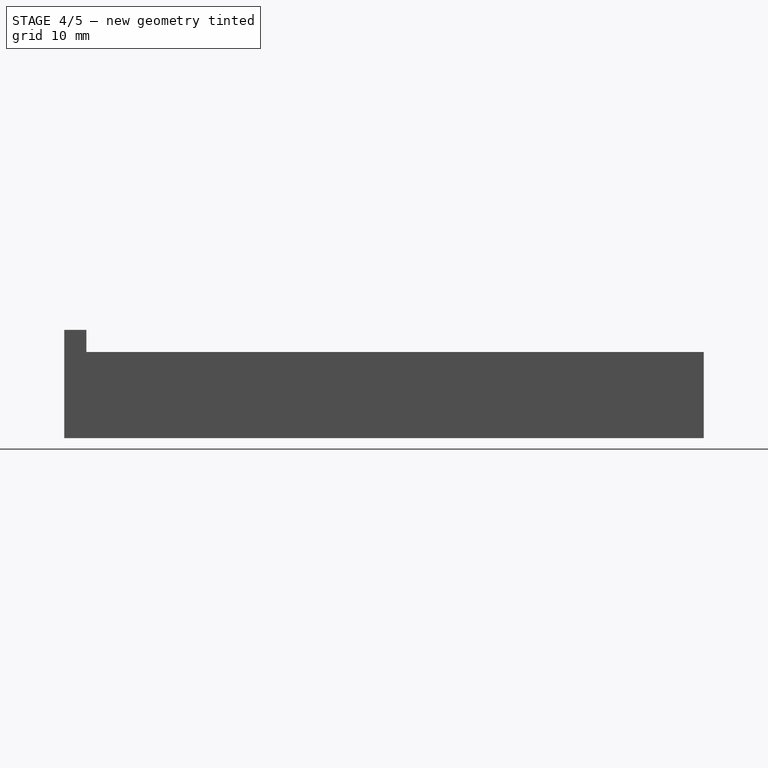
[diagram: stage 4 of 5 — right view after this stage's code; geometry added in this stage tinted green]
FEATURE [Sketcher::SketchObject] Sketch014
  ExternalGeometry = -> [Pocket003]
  Placement = pos=(0,3.6,0) rot=(0,0.707107,0.707107;3.14159rad)
  Support = -> Pocket003 [Face4]
  sketch-geometry (8):
    g0: LineSegment StartX=-47 StartY=15.6 StartZ=0 EndX=-37 EndY=15.6 EndZ=0
    g1: LineSegment StartX=-37 StartY=15.6 StartZ=0 EndX=-37 EndY=14 EndZ=0
    g2: LineSegment StartX=-37 StartY=14 StartZ=0 EndX=-47 EndY=14 EndZ=0
    g3: LineSegment StartX=-47 StartY=14 StartZ=0 EndX=-47 EndY=15.6 EndZ=0
    g4: LineSegment StartX=-18 StartY=14 StartZ=0 EndX=-8 EndY=14 EndZ=0
    g5: LineSegment StartX=-8 StartY=14 StartZ=0 EndX=-8 EndY=15.6 EndZ=0
    g6: LineSegment StartX=-8 StartY=15.6 StartZ=0 EndX=-18 EndY=15.6 EndZ=0
    g7: LineSegment StartX=-18 StartY=15.6 StartZ=0 EndX=-18 EndY=14 EndZ=0
  constraints (24):
    c: Coincident(g0,g1)
    c: Coincident(g1,g2)
    c: Coincident(g2,g3)
    c: Coincident(g3,g0)
    c: Horizontal(g0)
    c: Horizontal(g2)
    c: Vertical(g1)
    c: Vertical(g3)
    c: PointOnObject(g1,g-3)
    c: Coincident(g4,g5)
    c: Coincident(g5,g6)
    c: Coincident(g6,g7)
    c: Coincident(g7,g4)
    c: Horizontal(g4)
    c: Horizontal(g6)
    c: Vertical(g5)
    c: Vertical(g7)
    c: PointOnObject(g4,g-3)
    c: Equal(g0,g6)
    c: Equal(g3,g7)
    c: Distance(g3) = 1.6
    c: Distance(g0) = 10
    c: DistanceX(g-7,g2) = 8
    c: DistanceX(g4,g-8) = 8
FEATURE [PartDesign::Pocket] Pocket004
  Length = 2
  Sketch = -> Sketch014
  Type = 0
FEATURE [Sketcher::SketchObject] Sketch015
  ExternalGeometry = -> [Pocket004]
  Placement = pos=(53.4,0,0) rot=(0.57735,-0.57735,-0.57735;2.0944rad)
  Support = -> Pocket004 [Face23]
  sketch-geometry (8):
    g0: LineSegment StartX=-89.7 StartY=13.25 StartZ=0 EndX=-81.7 EndY=13.25 EndZ=0
    g1: LineSegment StartX=-81.7 StartY=13.25 StartZ=0 EndX=-81.7 EndY=11.25 EndZ=0
    g2: LineSegment StartX=-81.7 StartY=11.25 StartZ=0 EndX=-89.7 EndY=11.25 EndZ=0
    g3: LineSegment StartX=-89.7 StartY=11.25 StartZ=0 EndX=-89.7 EndY=13.25 EndZ=0
    g4: LineSegment StartX=-51.2 StartY=13.25 StartZ=0 EndX=-43.2 EndY=13.25 EndZ=0
    g5: LineSegment StartX=-43.2 StartY=13.25 StartZ=0 EndX=-43.2 EndY=11.25 EndZ=0
    g6: LineSegment StartX=-43.2 StartY=11.25 StartZ=0 EndX=-51.2 EndY=11.25 EndZ=0
    g7: LineSegment StartX=-51.2 StartY=11.25 StartZ=0 EndX=-51.2 EndY=13.25 EndZ=0
  constraints (24):
    c: Coincident(g0,g1)
    c: Coincident(g1,g2)
    c: Coincident(g2,g3)
    c: Coincident(g3,g0)
    c: Horizontal(g0)
    c: Horizontal(g2)
    c: Vertical(g1)
    c: Vertical(g3)
    c: Coincident(g4,g5)
    c: Coincident(g5,g6)
    c: Coincident(g6,g7)
    c: Coincident(g7,g4)
    c: Horizontal(g4)
    c: Horizontal(g6)
    c: Vertical(g5)
    c: Vertical(g7)
    c: Equal(g1,g7)
    c: Equal(g2,g6)
    c: Distance(g3) = 2
    c: DistanceY(g0,g-3) = 0.75
    c: DistanceY(g4,g-4) = 0.75
    c: Distance(g4) = 8
    c: DistanceX(g4,g-4) = 15
    c: DistanceX(g0,g4) = 30.5
FEATURE [PartDesign::Pad] Pad009
  Length = 0.8
  Length2 = 100
  Sketch = -> Sketch015
  Type = 0
FEATURE [Sketcher::SketchObject] Sketch016
  ExternalGeometry = -> [Pad009]
  Placement = pos=(1.6,0,0) rot=(0.57735,0.57735,0.57735;2.0944rad)
  Support = -> Pad009 [Face24]
  sketch-geometry (8):
    g0: LineSegment StartX=43.2 StartY=13.25 StartZ=0 EndX=51.2 EndY=13.25 EndZ=0
    g1: LineSegment StartX=51.2 StartY=13.25 StartZ=0 EndX=51.2 EndY=11.25 EndZ=0
    g2: LineSegment StartX=51.2 StartY=11.25 StartZ=0 EndX=43.2 EndY=11.25 EndZ=0
    g3: LineSegment StartX=43.2 StartY=11.25 StartZ=0 EndX=43.2 EndY=13.25 EndZ=0
    g4: LineSegment StartX=81.7 StartY=13.25 StartZ=0 EndX=89.7 EndY=13.25 EndZ=0
    g5: LineSegment StartX=89.7 StartY=13.25 StartZ=0 EndX=89.7 EndY=11.25 EndZ=0
    g6: LineSegment StartX=89.7 StartY=11.25 StartZ=0 EndX=81.7 EndY=11.25 EndZ=0
    g7: LineSegment StartX=81.7 StartY=11.25 StartZ=0 EndX=81.7 EndY=13.25 EndZ=0
  constraints (24):
    c: Coincident(g0,g1)
    c: Coincident(g1,g2)
    c: Coincident(g2,g3)
    c: Coincident(g3,g0)
    c: Horizontal(g0)
    c: Horizontal(g2)
    c: Vertical(g1)
    c: Vertical(g3)
    c: Coincident(g4,g5)
    c: Coincident(g5,g6)
    c: Coincident(g6,g7)
    c: Coincident(g7,g4)
    c: Horizontal(g4)
    c: Horizontal(g6)
    c: Vertical(g5)
    c: Vertical(g7)
    c: Equal(g0,g4)
    c: Equal(g1,g7)
    c: DistanceY(g0,g-4) = 0.75
    c: Distance(g3) = 2
    c: DistanceY(g4,g-4) = 0.75
    c: DistanceX(g-4,g0) = 15
    c: Distance(g0) = 8
    c: DistanceX(g0,g4) = 30.5
FEATURE [PartDesign::Pad] Pad010
  Length = 0.8
  Length2 = 100
  Sketch = -> Sketch016
  Type = 0
FEATURE [PartDesign::Chamfer] Chamfer
  Base = -> Pad010 [Edge332,Edge327,Edge324,Edge319,Edge306,Edge309,Edge311,Edge316]
  Size = 0.79
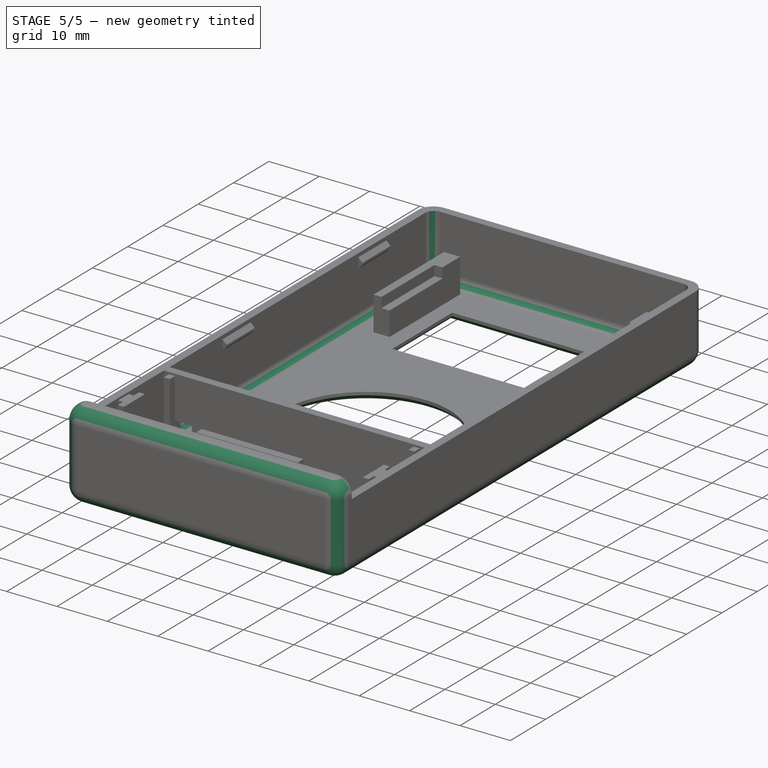
[diagram: stage 5 of 5 — iso view after this stage's code; geometry added in this stage tinted green]
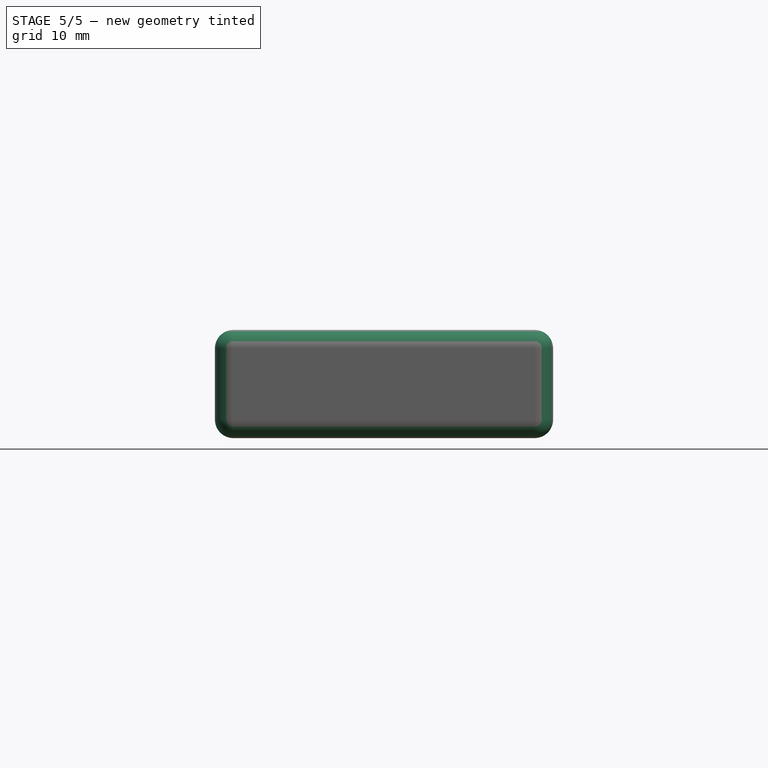
[diagram: stage 5 of 5 — front view after this stage's code; geometry added in this stage tinted green]
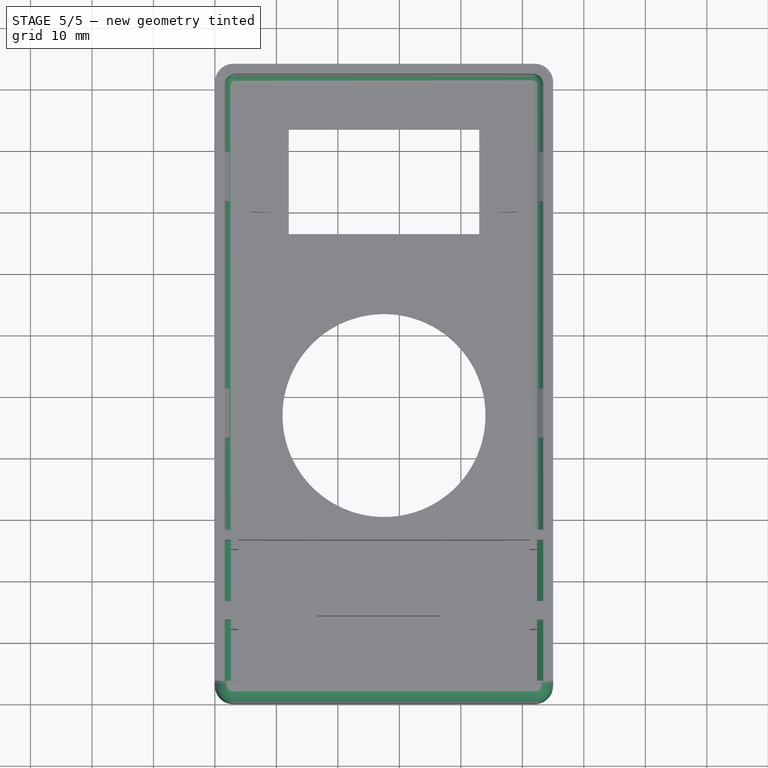
[diagram: stage 5 of 5 — top view after this stage's code; geometry added in this stage tinted green]
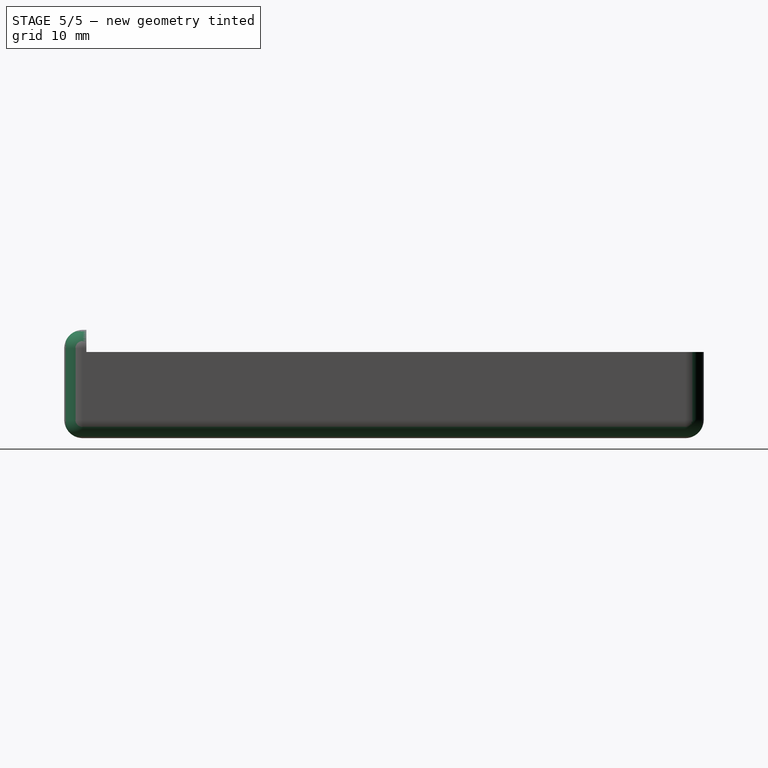
[diagram: stage 5 of 5 — right view after this stage's code; geometry added in this stage tinted green]
FEATURE [PartDesign::Chamfer] Chamfer001
  Base = -> Chamfer [Edge251,Edge252,Edge249,Edge250,Edge206]
  Size = 1
FEATURE [PartDesign::Chamfer] Chamfer002
  Base = -> Chamfer001 [Edge208,Edge193,Edge227,Edge228]
  Size = 0.99
FEATURE [PartDesign::Fillet] Fillet
  Base = -> Chamfer002 [Edge289,Edge208,Edge280,Edge207,Edge196]
  Radius = 1.8
FEATURE [PartDesign::Fillet] Fillet001
  Base = -> Fillet [Edge230,Edge231,Edge269,Edge63,Edge62,Edge227,Edge233,Edge232,Edge67,Edge68,Edge61,Edge66,Edge65]
  Radius = 3
FEATURE [App::DocumentObjectGroup] Group  label="Front"
  Group = -> [Pad,Pocket,Pocket001,Pad001,Pad002,Pad003,Pad004,Pad005,Pad006,Pocket002,Pad007,Pad008,Pocket003,Pocket004,Pad009,Pad010,Chamfer,Chamfer001,Chamfer002,Fillet,Fillet001]
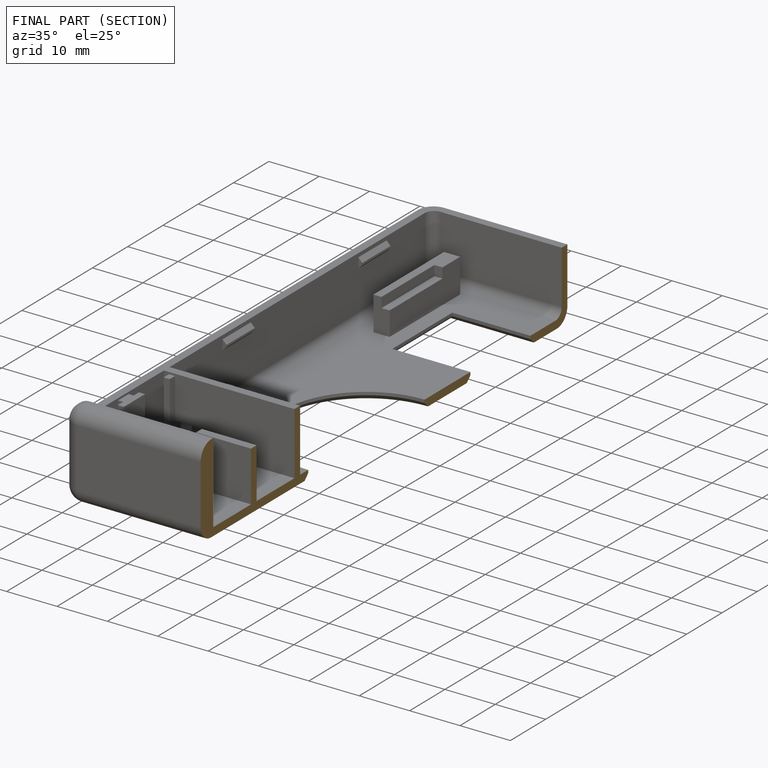
[diagram: finished part — half-section view (interior)]
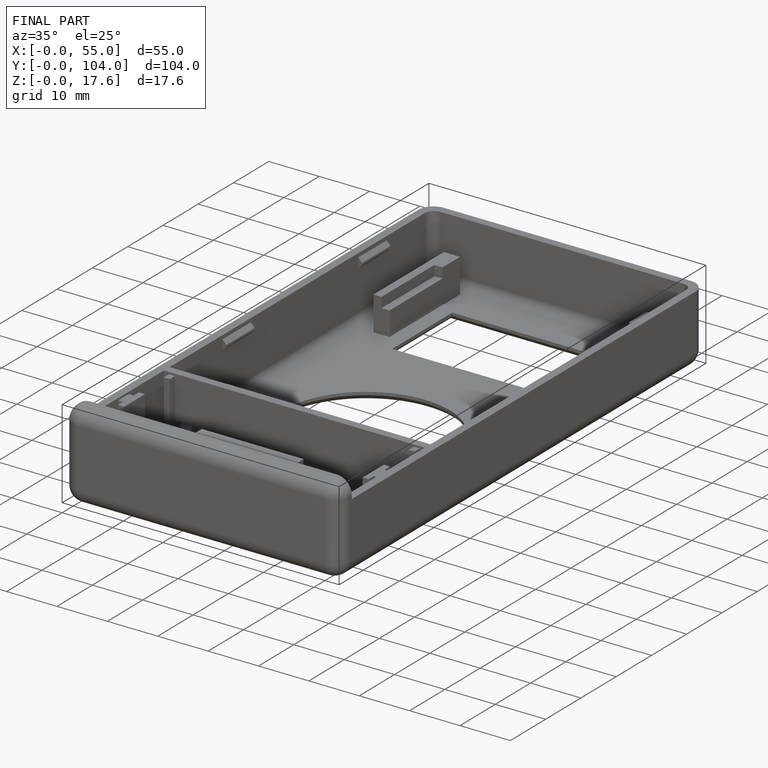
[diagram: finished part — iso view with bounding-box wireframe]
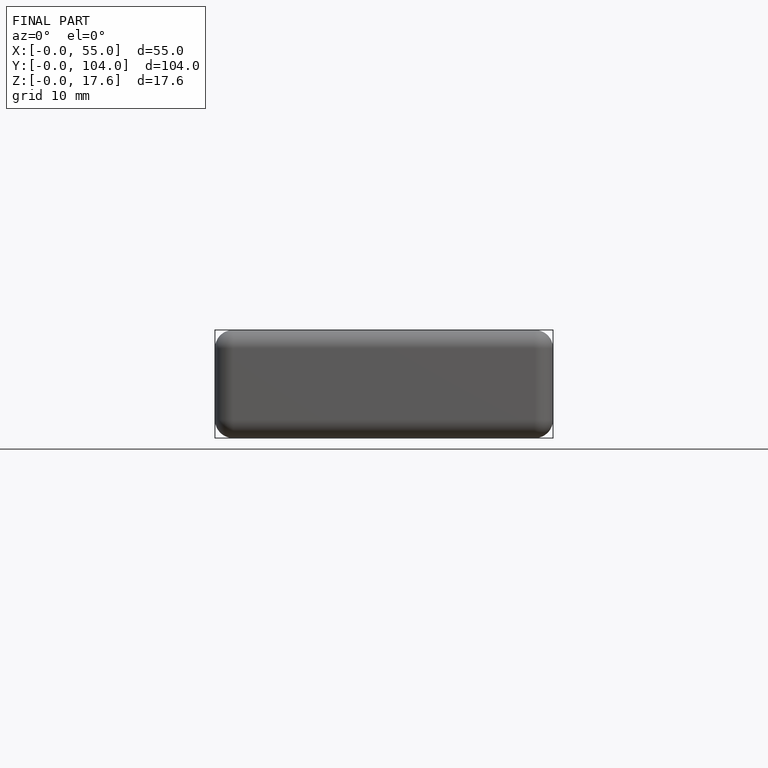
[diagram: finished part — front view with bounding-box wireframe]
